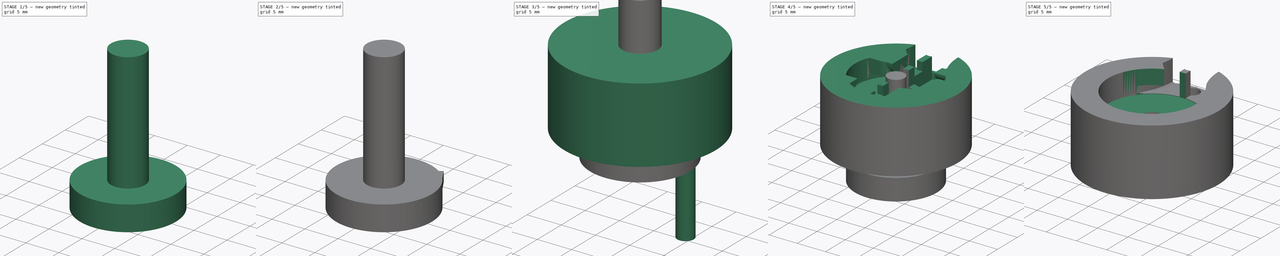
[diagram: build sequence overview — one tinted view per stage of 5, left to right]
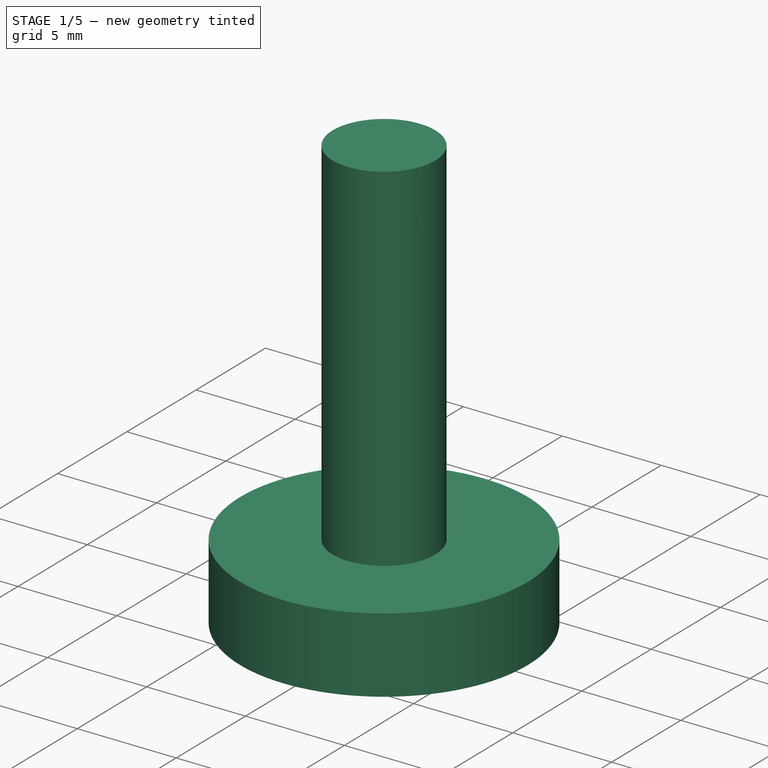
[diagram: stage 1 of 5 — iso view after this stage's code; geometry added in this stage tinted green]
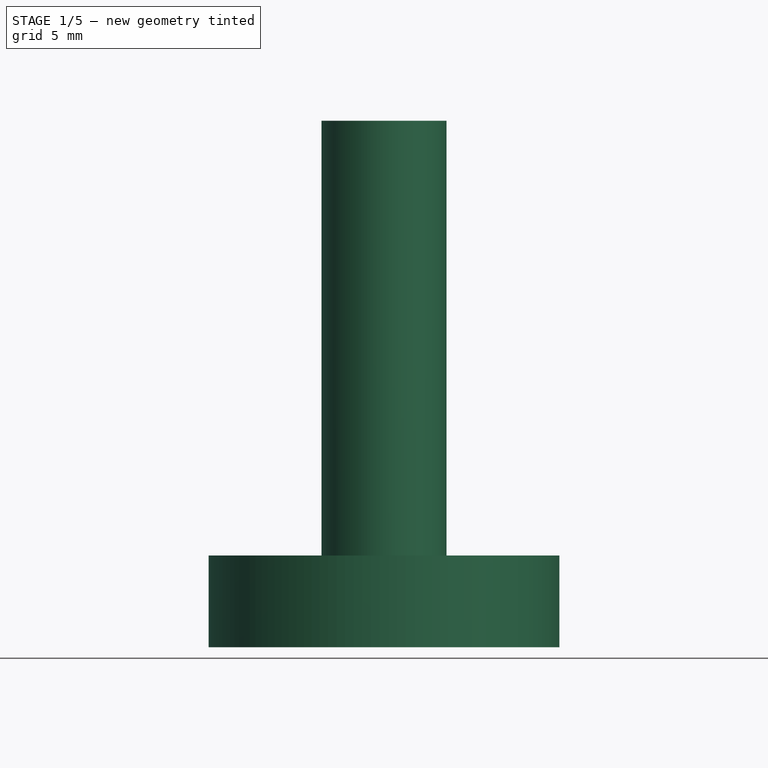
[diagram: stage 1 of 5 — front view after this stage's code; geometry added in this stage tinted green]
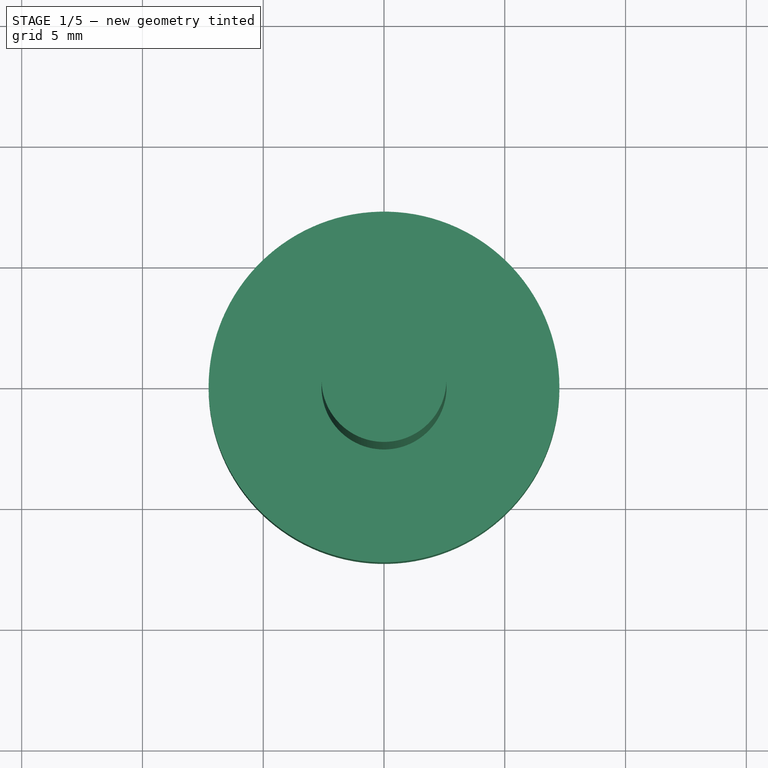
[diagram: stage 1 of 5 — top view after this stage's code; geometry added in this stage tinted green]
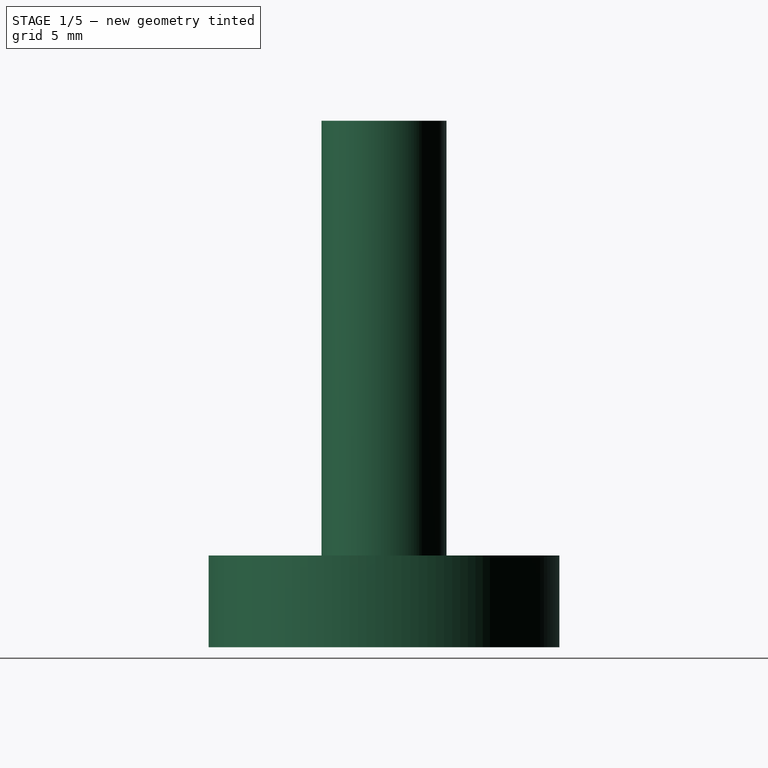
[diagram: stage 1 of 5 — right view after this stage's code; geometry added in this stage tinted green]
FCSTD DOCUMENT  (FreeCAD 0.19R24276 (Git))
Label: my_gear2
License: All rights reserved
LicenseURL: http://en.wikipedia.org/wiki/All_rights_reserved
objects: App::Part×11, Sketcher::SketchObject×11, PartDesign::Body×10, PartDesign::Pad×9, Part::Cut×6, Part::Feature×2
note: 47 computed .brp shape members not serialized (recipe doc carries the construction recipe); baked Part::Feature solids carry a one-line shape summary decoded from their .brp

FEATURE [PartDesign::Body] Body006
  Group = -> [Sketch010,Pad006]
  Origin = -> Origin015
  Tip = -> Pad006
FEATURE [App::Part] Part006
  Group = -> [Body005,Body006]
  Origin = -> Origin013
  Placement = pos=(0,0,13) rot=(0,0,1;0rad)
FEATURE [Sketcher::SketchObject] Sketch011
  FullyConstrained = false
  MapMode = 5
  Support = -> [XY_Plane017]
  sketch-geometry (1):
    g0: Circle CenterX=0 CenterY=0 CenterZ=0 NormalX=0 NormalY=0 NormalZ=1 AngleXU=0 Radius=1.5
  constraints (1):
    c: PointOnObject(g0,g-2)
FEATURE [PartDesign::Pad] Pad007
  Direction = (1,1,1)
  Length = 13
  Length2 = 100
  Profile = -> Sketch011
  Type = 0
FEATURE [PartDesign::Body] Body007
  Group = -> [Sketch011,Pad007]
  Origin = -> Origin017
  Tip = -> Pad007
FEATURE [App::Part] Part007
  Group = -> [Body007]
  Origin = -> Origin016
FEATURE [PartDesign::Pad] Pad002
  Direction = (1,1,1)
  Length = 18
  Length2 = 100
  Profile = -> Sketch002
  Type = 0
FEATURE [Sketcher::SketchObject] Sketch013
  FullyConstrained = false
  MapMode = 5
  Support = -> [XY_Plane019]
  sketch-geometry (1):
    g0: Circle CenterX=0 CenterY=0 CenterZ=0 NormalX=0 NormalY=0 NormalZ=1 AngleXU=0 Radius=7.26145
  constraints (1):
    c: Coincident(g0,g-1)
FEATURE [PartDesign::Pad] Pad008
  Direction = (1,1,1)
  Length = 3.8
  Length2 = 100
  Profile = -> Sketch013
  Reversed = true
  Type = 0
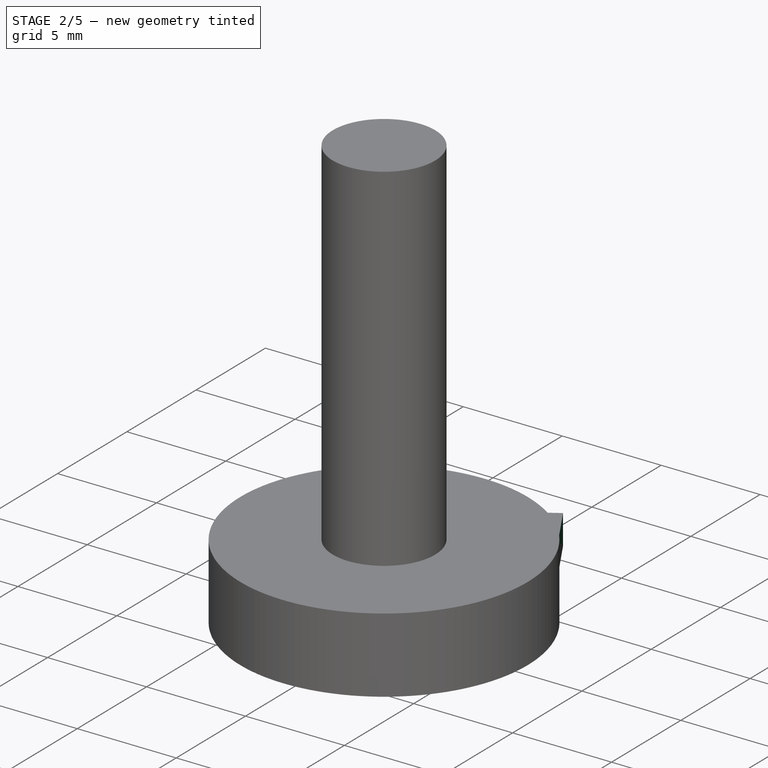
[diagram: stage 2 of 5 — iso view after this stage's code; geometry added in this stage tinted green]
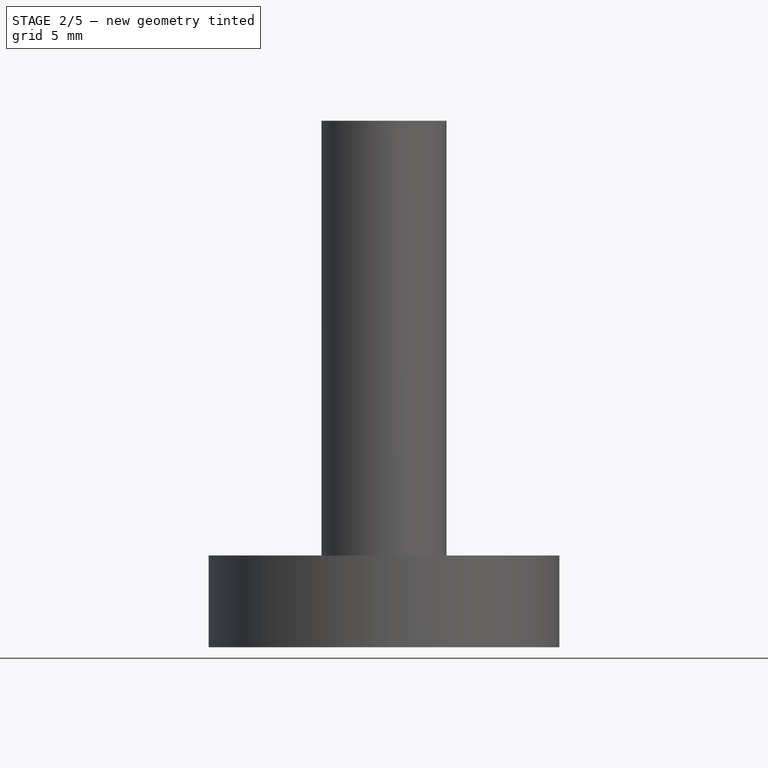
[diagram: stage 2 of 5 — front view after this stage's code; geometry added in this stage tinted green]
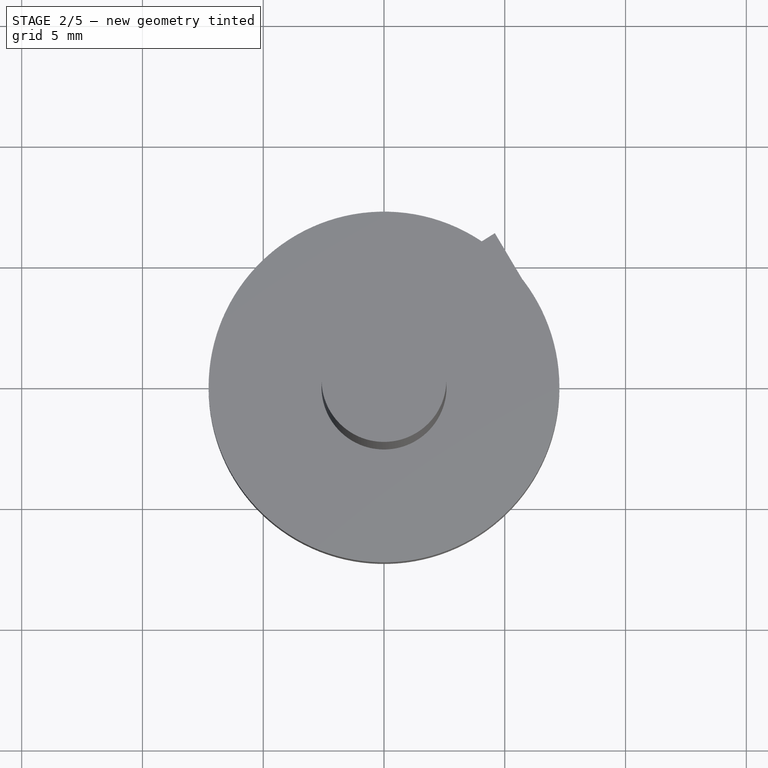
[diagram: stage 2 of 5 — top view after this stage's code; geometry added in this stage tinted green]
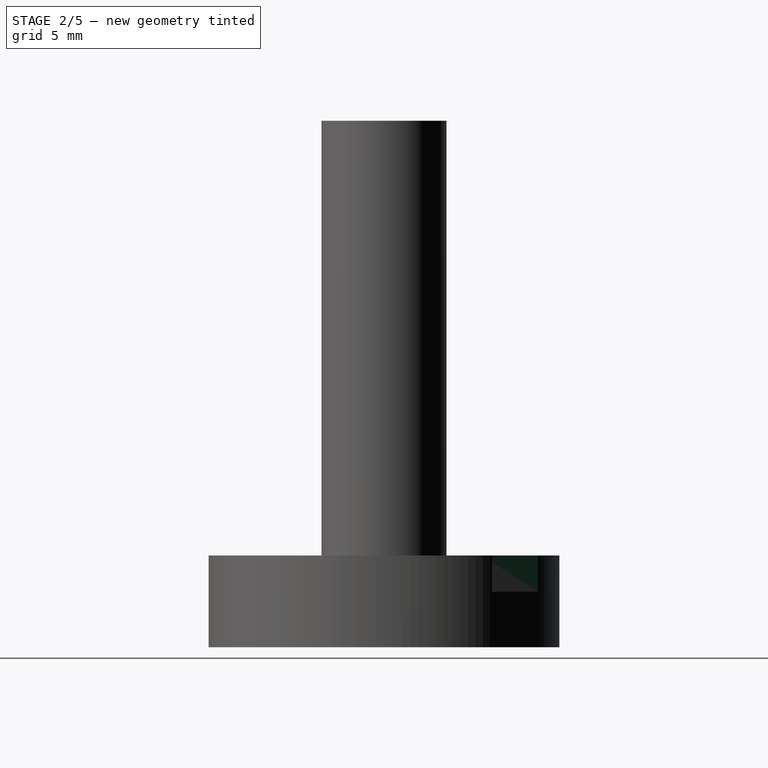
[diagram: stage 2 of 5 — right view after this stage's code; geometry added in this stage tinted green]
FEATURE [PartDesign::Body] Body003
  Group = -> [Sketch007,Pad003]
  Origin = -> Origin009
  Placement = pos=(0,0,13) rot=(0,0,1;0rad)
  Tip = -> Pad003
FEATURE [Sketcher::SketchObject] Sketch008
  FullyConstrained = false
  MapMode = 5
  Support = -> [XY_Plane011]
  sketch-geometry (4):
    g0: LineSegment StartX=-4 StartY=-6 StartZ=0 EndX=2.7559 EndY=-6 EndZ=0
    g1: LineSegment StartX=2.7559 StartY=-6 StartZ=0 EndX=2.7559 EndY=-4 EndZ=0
    g2: LineSegment StartX=2.7559 StartY=-4 StartZ=0 EndX=-4 EndY=-4 EndZ=0
    g3: LineSegment StartX=-4 StartY=-4 StartZ=0 EndX=-4 EndY=-6 EndZ=0
  constraints (8):
    c: Coincident(g0,g1)
    c: Coincident(g1,g2)
    c: Coincident(g2,g3)
    c: Coincident(g3,g0)
    c: Horizontal(g0)
    c: Horizontal(g2)
    c: Vertical(g1)
    c: Vertical(g3)
FEATURE [PartDesign::Pad] Pad004
  Direction = (1,1,1)
  Length = 1.5
  Length2 = 100
  Profile = -> Sketch008
  Reversed = true
  Type = 0
FEATURE [App::Part] Part005
  Group = -> [Body003,Body004]
  Origin = -> Origin012
FEATURE [Sketcher::SketchObject] Sketch009
  FullyConstrained = false
  MapMode = 5
  Support = -> [XY_Plane014]
  sketch-geometry (4):
    g0: LineSegment StartX=4.58873 StartY=6.3703 StartZ=0 EndX=6 EndY=4 EndZ=0
    g1: LineSegment StartX=6 StartY=4 StartZ=0 EndX=4 EndY=4 EndZ=0
    g2: LineSegment StartX=4 StartY=4 StartZ=0 EndX=4 EndY=6 EndZ=0
    g3: LineSegment StartX=4 StartY=6 StartZ=0 EndX=4.58873 EndY=6.3703 EndZ=0
  constraints (6):
    c: Coincident(g0,g1)
    c: Horizontal(g1)
    c: Coincident(g1,g2)
    c: Vertical(g2)
    c: Coincident(g2,g3)
    c: Coincident(g3,g0)
FEATURE [PartDesign::Pad] Pad005
  Direction = (1,1,1)
  Length = 1.5
  Length2 = 100
  Profile = -> Sketch009
  Reversed = true
  Type = 0
FEATURE [PartDesign::Body] Body005
  Group = -> [Sketch009,Pad005]
  Origin = -> Origin014
  Tip = -> Pad005
FEATURE [Sketcher::SketchObject] Sketch010
  FullyConstrained = false
  MapMode = 5
  Support = -> [XY_Plane015]
  sketch-geometry (3):
    g0: LineSegment StartX=-4 StartY=-6 StartZ=0 EndX=-4 EndY=-4 EndZ=0
    g1: LineSegment StartX=-4 StartY=-4 StartZ=0 EndX=-6 EndY=-4 EndZ=0
    g2: LineSegment StartX=-6 StartY=-4 StartZ=0 EndX=-4 EndY=-6 EndZ=0
  constraints (5):
    c: Vertical(g0)
    c: Coincident(g0,g1)
    c: Horizontal(g1)
    c: Coincident(g1,g2)
    c: Coincident(g2,g0)
FEATURE [PartDesign::Pad] Pad006
  Direction = (1,1,1)
  Length = 1.5
  Length2 = 100
  Profile = -> Sketch010
  Reversed = true
  Type = 0
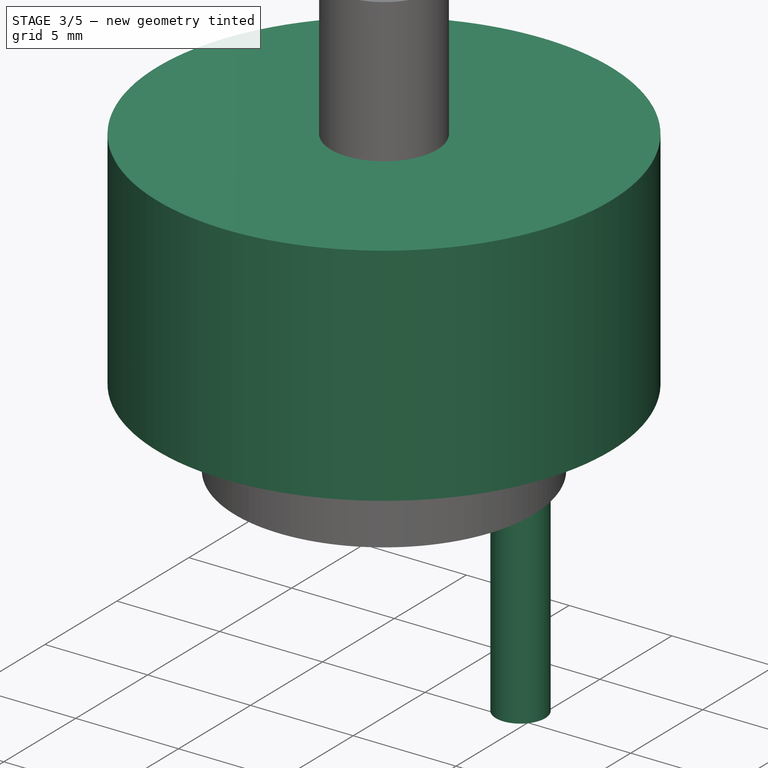
[diagram: stage 3 of 5 — iso view after this stage's code; geometry added in this stage tinted green]
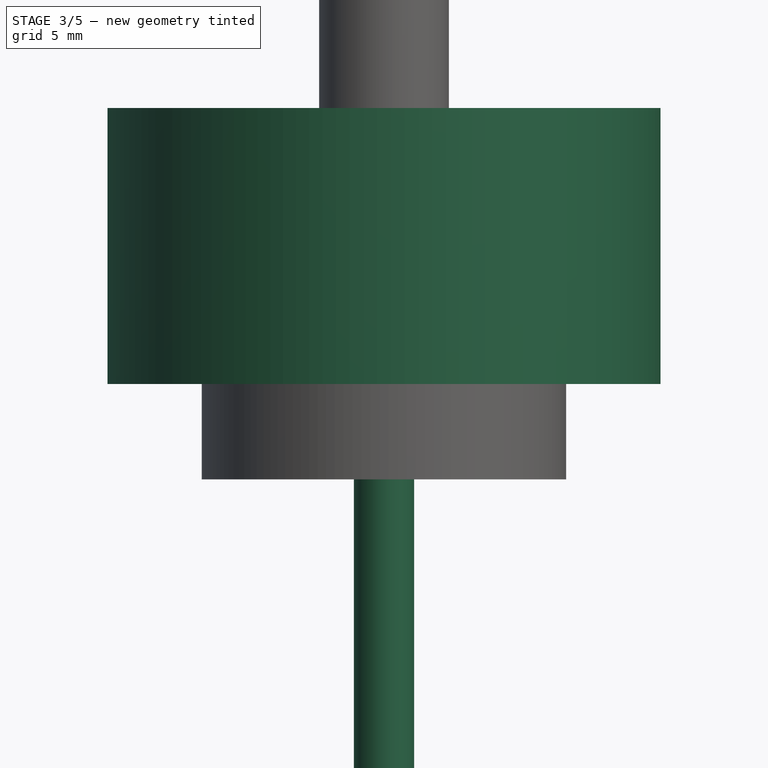
[diagram: stage 3 of 5 — front view after this stage's code; geometry added in this stage tinted green]
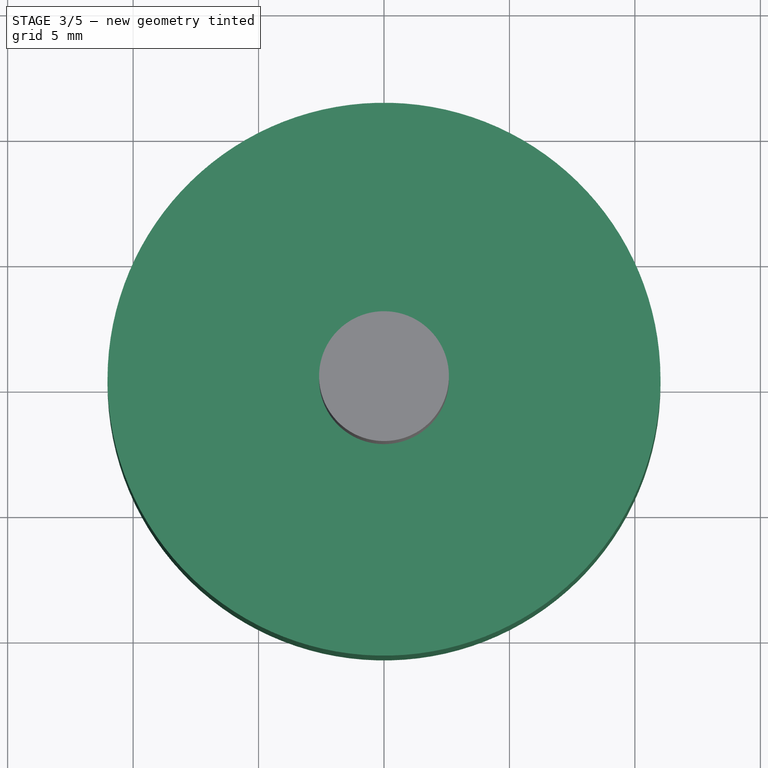
[diagram: stage 3 of 5 — top view after this stage's code; geometry added in this stage tinted green]
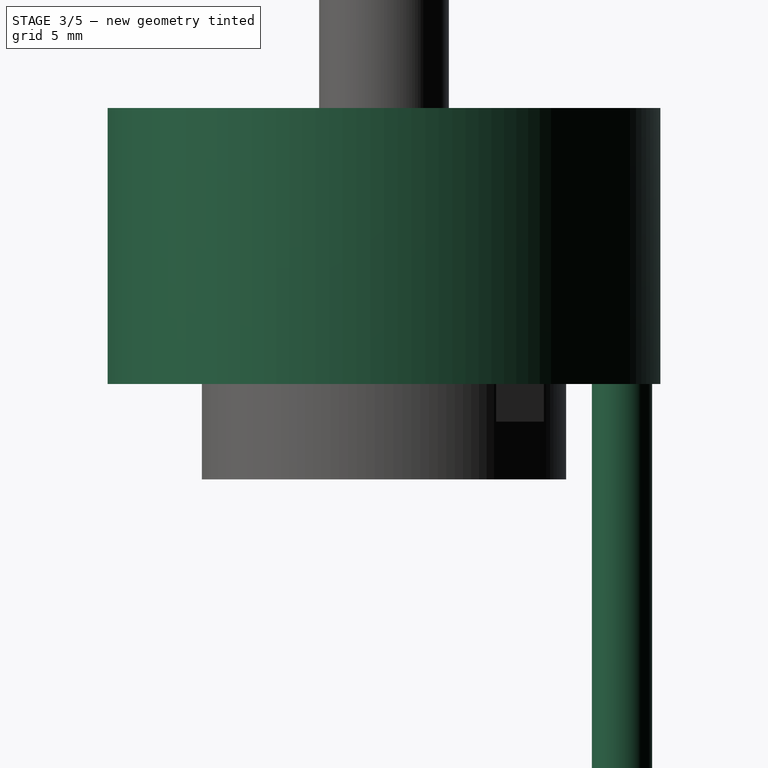
[diagram: stage 3 of 5 — right view after this stage's code; geometry added in this stage tinted green]
FEATURE [Part::Feature] Part__Feature  label="GB - Spur gear 1.5M 18T 20PA 6.5FW ---S18A75H50L0.8N"
  shape: bbox 6.5 x 29.67 x 30 mm, 90 faces (baked)
FEATURE [App::Part] c073172c7411e071254b69af1d061e8520230128_1_anairh  label="c073172c7411e071254b69af1d061e8520230128-1-anairh"
  Group = -> [Part__Feature]
  Origin = -> Origin
  Placement = pos=(0,0,0) rot=(0,-1,0;1.5708rad)
FEATURE [App::Part] Part  label="gear"
  Group = -> [c073172c7411e071254b69af1d061e8520230128_1_anairh]
  Origin = -> Origin001
FEATURE [Sketcher::SketchObject] Sketch
  FullyConstrained = false
  MapMode = 5
  Support = -> [XY_Plane003]
  sketch-geometry (1):
    g0: Circle CenterX=0 CenterY=0 CenterZ=0 NormalX=0 NormalY=0 NormalZ=1 AngleXU=0 Radius=11.0204
  constraints (1):
    c: Coincident(g0,g-1)
FEATURE [PartDesign::Pad] Pad
  Direction = (1,1,1)
  Length = 11
  Length2 = 100
  Profile = -> Sketch
  Type = 0
FEATURE [PartDesign::Body] Body
  Group = -> [Sketch,Pad]
  Origin = -> Origin003
  Placement = pos=(0,0,1) rot=(0,0,1;0rad)
  Tip = -> Pad
FEATURE [App::Part] Part001  label="adaos"
  Group = -> [Body]
  Origin = -> Origin002
  Placement = pos=(0,0,1) rot=(0,0,1;0rad)
FEATURE [Part::Feature] Part__Feature001  label="STEP214 Servo Arm for DS3218MG"
  Placement = pos=(0,2e-15,9) rot=(-1,0,0;1.5708rad)
  shape: bbox 14.89 x 35.53 x 6.001 mm, 629 faces (baked)
FEATURE [App::Part] Part002  label="arm"
  Group = -> [Part__Feature001]
  Origin = -> Origin004
  Placement = pos=(0,0,0.3) rot=(0,0,1;0rad)
FEATURE [App::Part] Part003
  Group = -> [Part,Part001,Part002]
  Origin = -> Origin005
FEATURE [Sketcher::SketchObject] Sketch002
  FullyConstrained = false
  MapMode = 5
  Support = -> [XY_Plane008]
  sketch-geometry (1):
    g0: Circle CenterX=0 CenterY=0 CenterZ=0 NormalX=0 NormalY=0 NormalZ=1 AngleXU=0 Radius=2.58759
  constraints (1):
    c: Coincident(g0,g-1)
FEATURE [Sketcher::SketchObject] Sketch007
  FullyConstrained = false
  MapMode = 5
  Support = -> [XY_Plane009]
  sketch-geometry (4):
    g0: LineSegment StartX=-2.73742 StartY=4 StartZ=0 EndX=4 EndY=4 EndZ=0
    g1: LineSegment StartX=4 StartY=4 StartZ=0 EndX=4 EndY=6 EndZ=0
    g2: LineSegment StartX=4 StartY=6 StartZ=0 EndX=-2.73742 EndY=6 EndZ=0
    g3: LineSegment StartX=-2.73742 StartY=6 StartZ=0 EndX=-2.73742 EndY=4 EndZ=0
  constraints (8):
    c: Coincident(g0,g1)
    c: Coincident(g1,g2)
    c: Coincident(g2,g3)
    c: Coincident(g3,g0)
    c: Horizontal(g0)
    c: Horizontal(g2)
    c: Vertical(g1)
    c: Vertical(g3)
FEATURE [PartDesign::Pad] Pad003
  Direction = (1,1,1)
  Length = 1.5
  Length2 = 100
  Profile = -> Sketch007
  Reversed = true
  Type = 0
FEATURE [Sketcher::SketchObject] Sketch001
  FullyConstrained = false
  MapMode = 5
  Support = -> [XY_Plane006]
  sketch-geometry (1):
    g0: Circle CenterX=0 CenterY=9.48518 CenterZ=0 NormalX=0 NormalY=0 NormalZ=1 AngleXU=0 Radius=1.20083
  constraints (1):
    c: PointOnObject(g0,g-2)
FEATURE [PartDesign::Pad] Pad001
  Direction = (1,1,1)
  Length = 18
  Length2 = 100
  Profile = -> Sketch001
  Reversed = true
  Type = 0
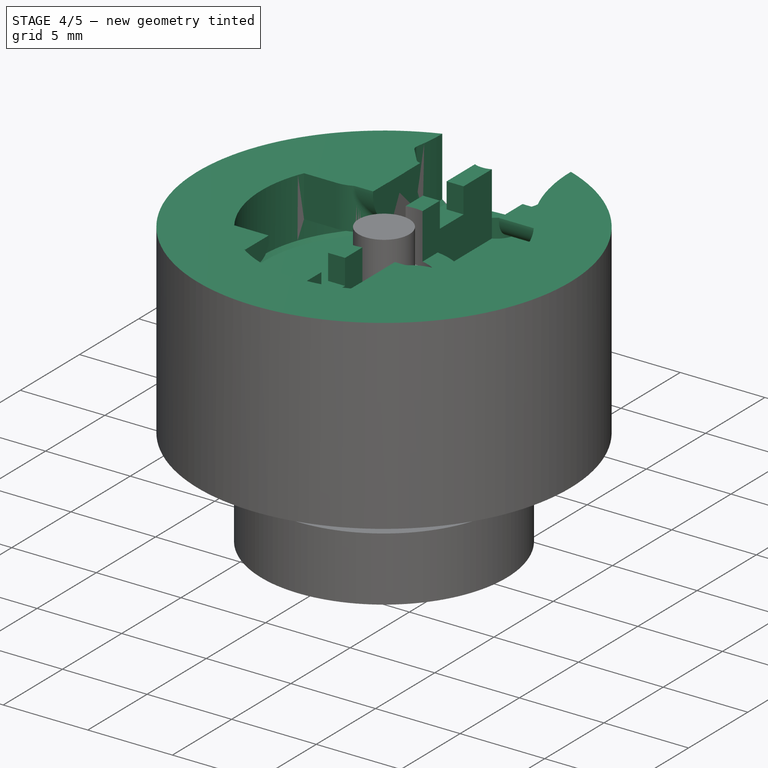
[diagram: stage 4 of 5 — iso view after this stage's code; geometry added in this stage tinted green]
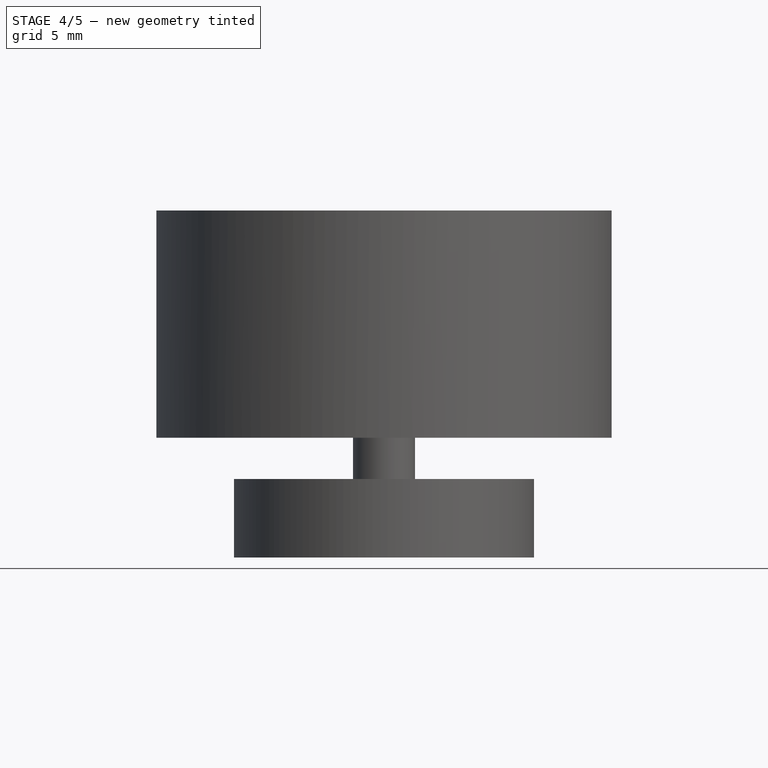
[diagram: stage 4 of 5 — front view after this stage's code; geometry added in this stage tinted green]
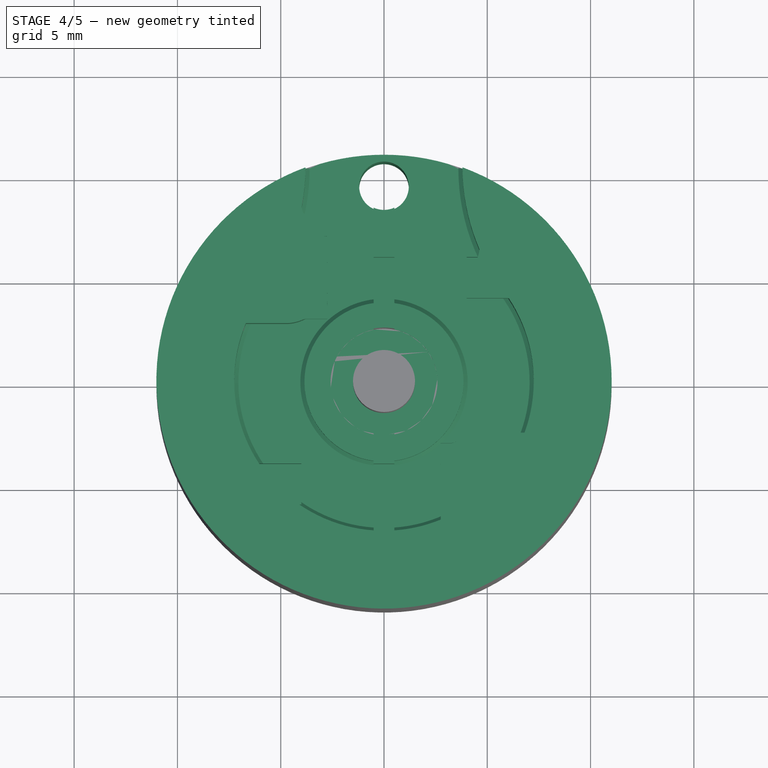
[diagram: stage 4 of 5 — top view after this stage's code; geometry added in this stage tinted green]
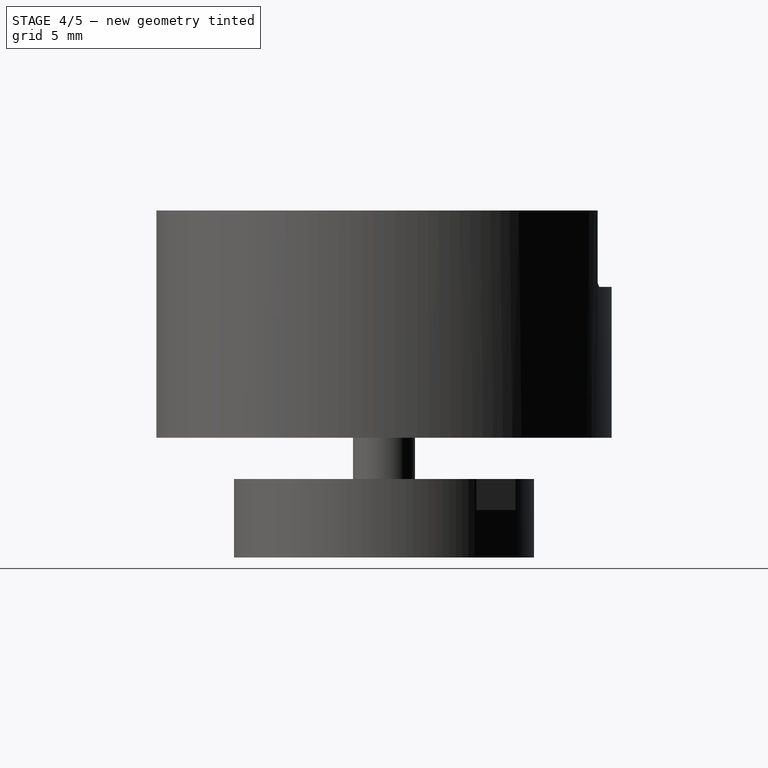
[diagram: stage 4 of 5 — right view after this stage's code; geometry added in this stage tinted green]
FEATURE [PartDesign::Body] Body004
  Group = -> [Sketch008,Pad004]
  Origin = -> Origin011
  Placement = pos=(0,0,13) rot=(0,0,1;0rad)
  Tip = -> Pad004
FEATURE [Part::Cut] Cut
  Base = -> Part001
  Tool = -> Part002
FEATURE [PartDesign::Body] Body002
  Group = -> [Sketch002,Pad002]
  Origin = -> Origin008
  Placement = pos=(0,0,10) rot=(0,0,1;0rad)
  Tip = -> Pad002
FEATURE [Sketcher::SketchObject] Sketch012
  FullyConstrained = true
  MapMode = 5
  Support = -> [XY_Plane006]
FEATURE [PartDesign::Body] Body001
  Group = -> [Sketch001,Pad001,Sketch012]
  Origin = -> Origin006
  Placement = pos=(0,0,13) rot=(0,0,1;0rad)
  Tip = -> Pad001
FEATURE [App::Part] Part004
  Group = -> [Body002,Body001]
  Origin = -> Origin007
FEATURE [Part::Cut] Cut001
  Base = -> Cut
  Tool = -> Part004
FEATURE [Part::Cut] Cut002
  Base = -> Cut001
  Tool = -> Part005
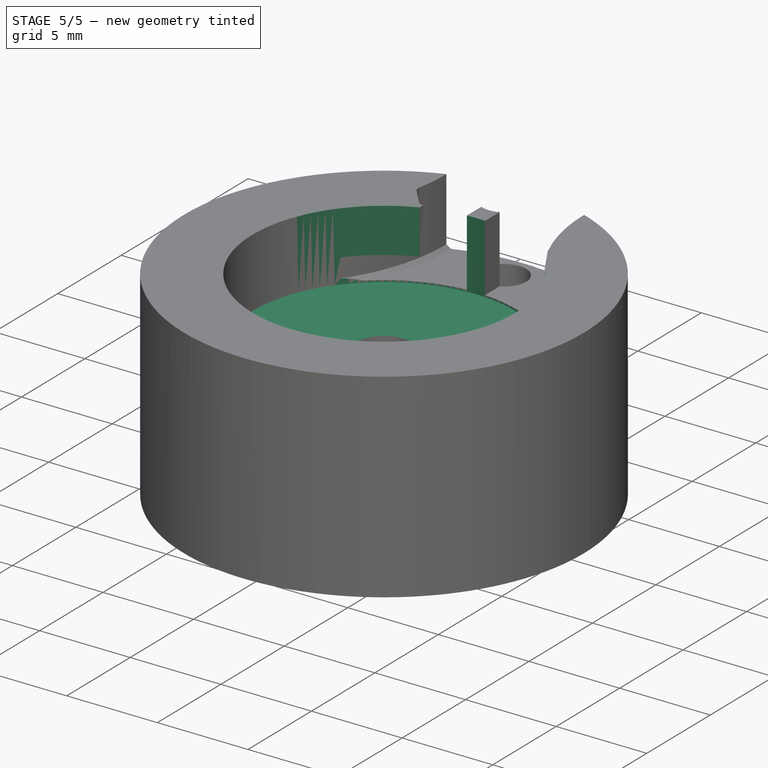
[diagram: stage 5 of 5 — iso view after this stage's code; geometry added in this stage tinted green]
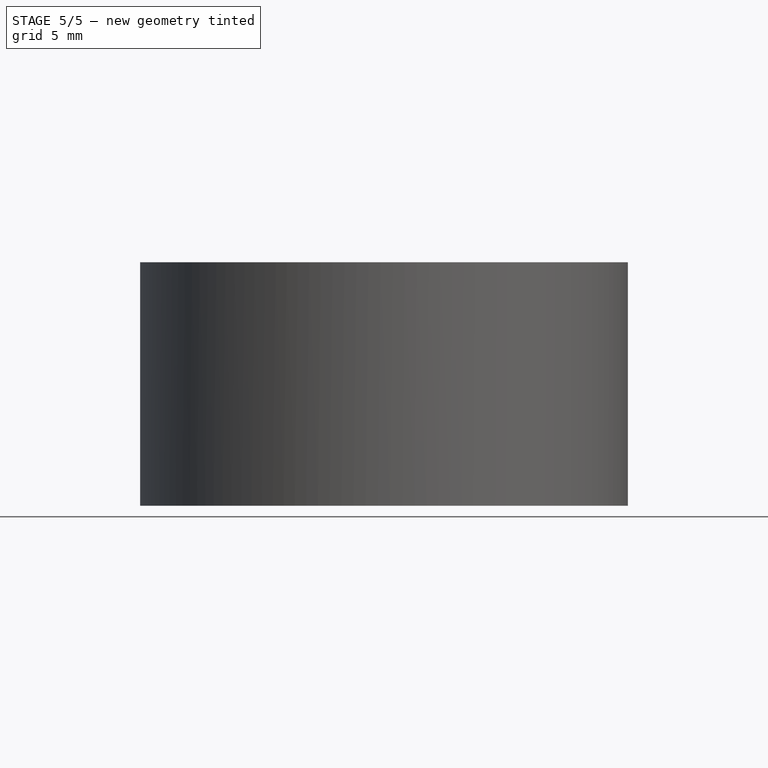
[diagram: stage 5 of 5 — front view after this stage's code; geometry added in this stage tinted green]
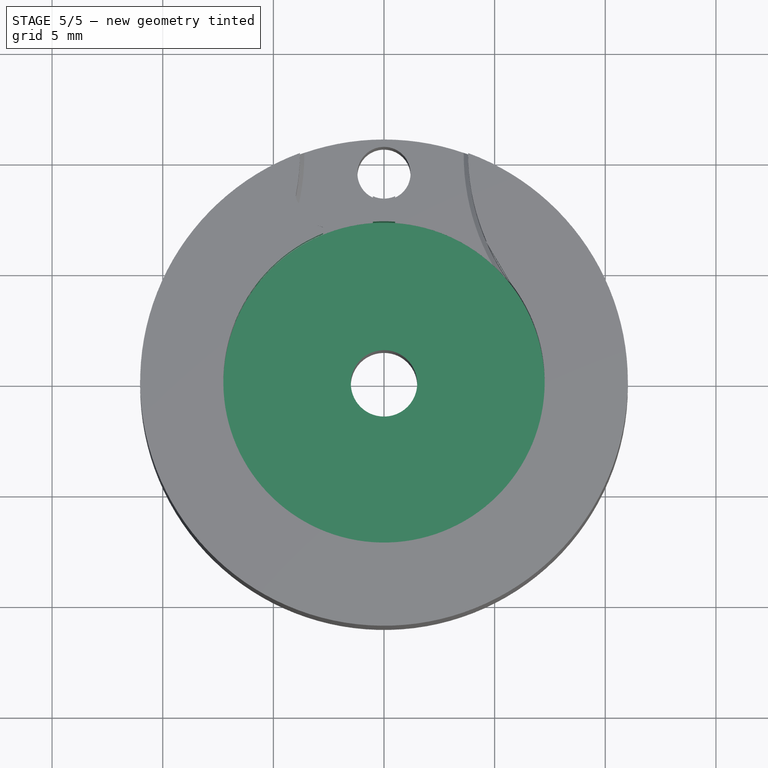
[diagram: stage 5 of 5 — top view after this stage's code; geometry added in this stage tinted green]
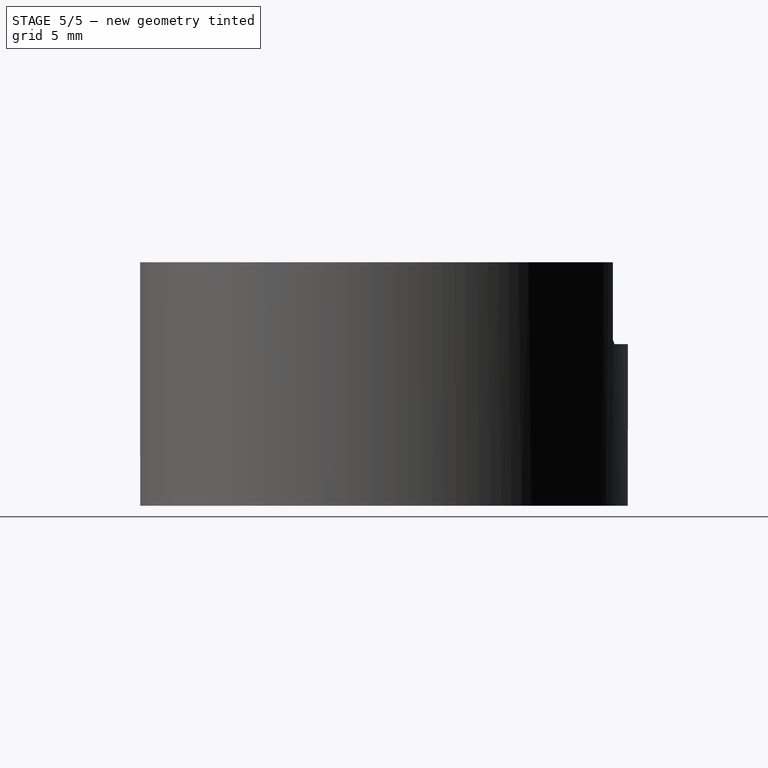
[diagram: stage 5 of 5 — right view after this stage's code; geometry added in this stage tinted green]
FEATURE [Part::Cut] Cut003
  Base = -> Cut002
  Tool = -> Part006
FEATURE [Part::Cut] Cut004
  Base = -> Cut003
  Tool = -> Part007
FEATURE [PartDesign::Body] Body008
  Group = -> [Sketch013,Pad008]
  Origin = -> Origin019
  Placement = pos=(0,0,13) rot=(0,0,1;0rad)
  Tip = -> Pad008
FEATURE [App::Part] Part008
  Group = -> [Body008]
  Origin = -> Origin018
FEATURE [Part::Cut] Cut005
  Base = -> Cut004
  Tool = -> Part008
FEATURE [Sketcher::SketchObject] Sketch014
  FullyConstrained = false
  MapMode = 5
  Support = -> [XY_Plane021]
  sketch-geometry (4):
    g0: ArcOfCircle CenterX=-13.8536 CenterY=10.3154 CenterZ=0 NormalX=0 NormalY=0 NormalZ=1 AngleXU=0 Radius=10.0779 StartAngle=5.60592 EndAngle=6.28606
    g1: LineSegment StartX=-6 StartY=4 StartZ=0 EndX=0.510013 EndY=7.24385 EndZ=0
    g2: LineSegment StartX=0.510013 StartY=7.24385 StartZ=0 EndX=0.510013 EndY=8.42634 EndZ=0
    g3: LineSegment StartX=-3.77576 StartY=10.3444 StartZ=0 EndX=0.510013 EndY=8.42634 EndZ=0
  constraints (3):
    c: Coincident(g1,g0)
    c: Coincident(g2,g1)
    c: Vertical(g2)
FEATURE [PartDesign::Body] Body009
  Group = -> [Sketch014]
  Origin = -> Origin021
FEATURE [App::Part] Part009
  Group = -> [Body009]
  Origin = -> Origin020
  Placement = pos=(0,0,13) rot=(0,0,1;0rad)
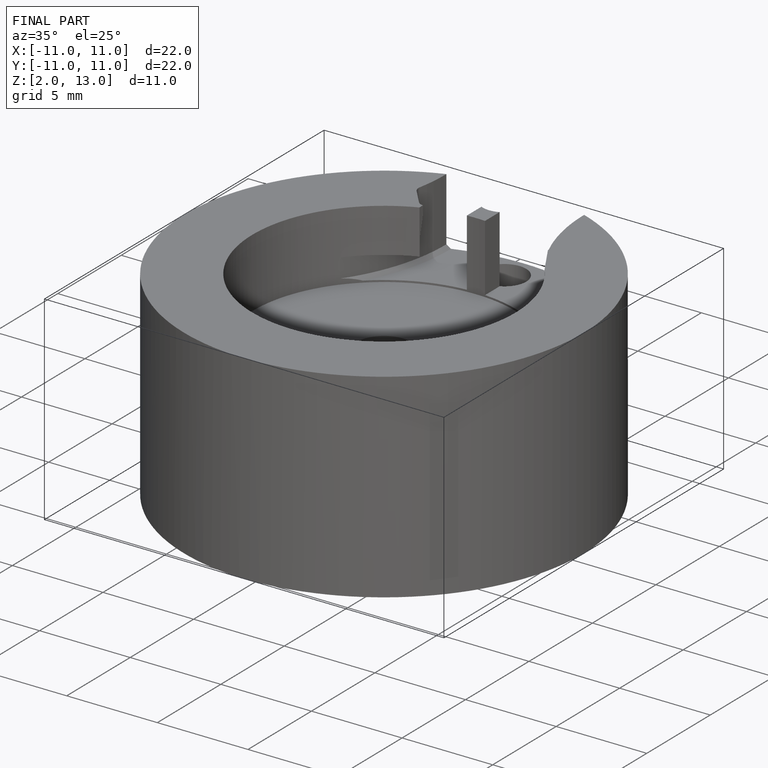
[diagram: finished part — iso view with bounding-box wireframe]
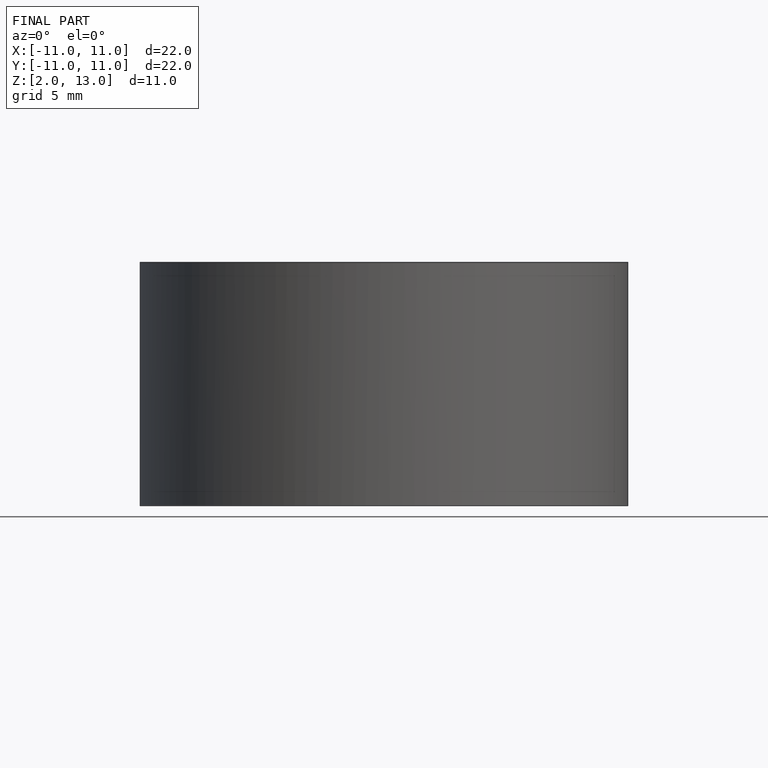
[diagram: finished part — front view with bounding-box wireframe]
